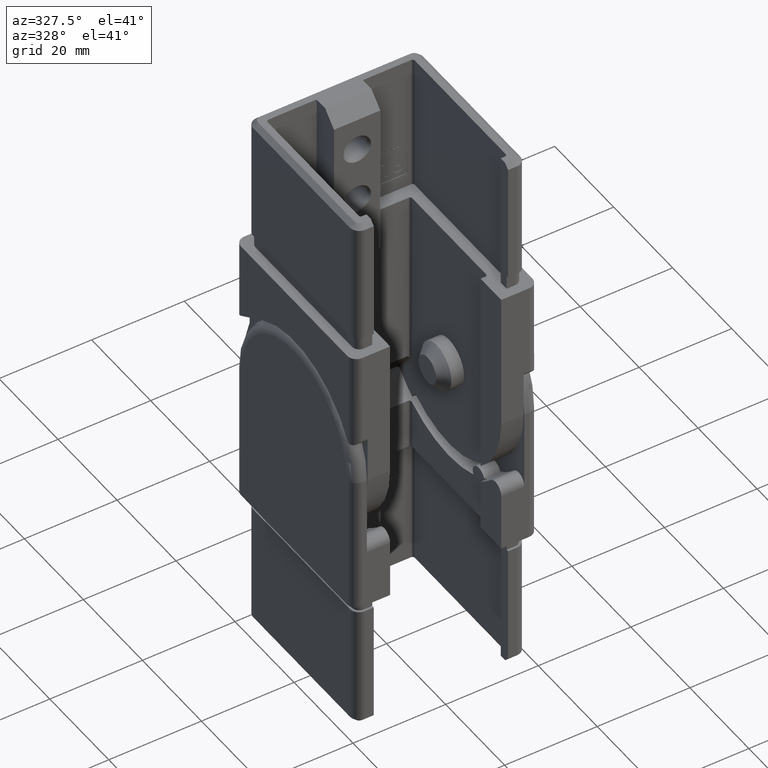
[diagram: clean part render]
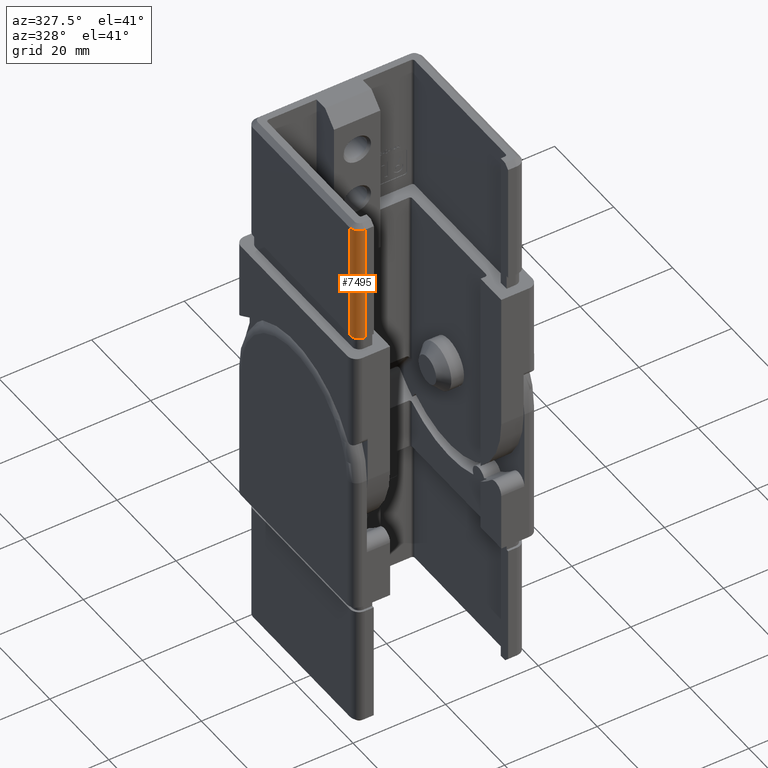
[diagram: same view with one face highlighted and labeled with its STEP entity id]
A machine part, auxiliary view. The second image highlights one B-rep face of the part: STEP entity #7495.
In plain terms, the highlighted cylindrical surface (edge-blend (fillet) strip) has radius 2 mm, axis along (-0, -0, -1).
Its self-contained STEP definition (entity closure, byte-faithful):
#270 = CIRCLE ( 'NONE', #20618, 2.000000000000000000 ) ;
#671 = EDGE_LOOP ( 'NONE', ( #20807, #2320, #18003, #17146 ) ) ;
#700 = DIRECTION ( 'NONE',  ( -0.0000000000000000000, -0.0000000000000000000, -1.000000000000000000 ) ) ;
#1036 = DIRECTION ( 'NONE',  ( -0.0000000000000000000, -0.0000000000000000000, -1.000000000000000000 ) ) ;
#1092 = CYLINDRICAL_SURFACE ( 'NONE', #11072, 2.000000000000001800 ) ;
#1208 = LINE ( 'NONE', #2479, #8276 ) ;
#2028 = DIRECTION ( 'NONE',  ( -1.000000000000000000, 0.0000000000000000000, 0.0000000000000000000 ) ) ;
#2150 = VERTEX_POINT ( 'NONE', #24013 ) ;
#2320 = ORIENTED_EDGE ( 'NONE', *, *, #22960, .F. ) ;
#2479 = CARTESIAN_POINT ( 'NONE',  ( -16.40000000000000600, -18.39999999999999500, 30.00000000000000000 ) ) ;
#3414 = EDGE_CURVE ( 'NONE', #17873, #10560, #16935, .T. ) ;
#4892 = EDGE_CURVE ( 'NONE', #12265, #17873, #270, .T. ) ;
#6769 = CARTESIAN_POINT ( 'NONE',  ( -18.40000000000000600, -16.39999999999999900, 29.00000000000000400 ) ) ;
#7486 = DIRECTION ( 'NONE',  ( -1.000000000000000000, 0.0000000000000000000, 0.0000000000000000000 ) ) ;
#7495 = ADVANCED_FACE ( 'NONE', ( #24517 ), #1092, .T. ) ;
#8276 = VECTOR ( 'NONE', #20573, 1000.000000000000000 ) ;
#9712 = DIRECTION ( 'NONE',  ( -0.0000000000000000000, -0.0000000000000000000, -1.000000000000000000 ) ) ;
#10026 = DIRECTION ( 'NONE',  ( -0.0000000000000000000, -0.0000000000000000000, -1.000000000000000000 ) ) ;
#10560 = VERTEX_POINT ( 'NONE', #23625 ) ;
#11072 = AXIS2_PLACEMENT_3D ( 'NONE', #19510, #9712, #7486 ) ;
#12265 = VERTEX_POINT ( 'NONE', #17920 ) ;
#12707 = AXIS2_PLACEMENT_3D ( 'NONE', #23759, #10026, #2028 ) ;
#12848 = CIRCLE ( 'NONE', #12707, 1.999999999999998200 ) ;
#13729 = EDGE_CURVE ( 'NONE', #12265, #2150, #1208, .T. ) ;
#14856 = DIRECTION ( 'NONE',  ( 1.000000000000000000, 0.0000000000000000000, 0.0000000000000000000 ) ) ;
#14939 = CARTESIAN_POINT ( 'NONE',  ( -16.40000000000000600, -16.39999999999999900, 29.00000000000000400 ) ) ;
#16935 = LINE ( 'NONE', #19266, #20322 ) ;
#17146 = ORIENTED_EDGE ( 'NONE', *, *, #4892, .T. ) ;
#17873 = VERTEX_POINT ( 'NONE', #6769 ) ;
#17920 = CARTESIAN_POINT ( 'NONE',  ( -16.40000000000000600, -18.39999999999999500, 29.00000000000000400 ) ) ;
#18003 = ORIENTED_EDGE ( 'NONE', *, *, #13729, .F. ) ;
#19266 = CARTESIAN_POINT ( 'NONE',  ( -18.40000000000000600, -16.39999999999999900, 30.00000000000000000 ) ) ;
#19510 = CARTESIAN_POINT ( 'NONE',  ( -16.40000000000000600, -16.39999999999999900, 30.00000000000000000 ) ) ;
#20322 = VECTOR ( 'NONE', #700, 1000.000000000000000 ) ;
#20573 = DIRECTION ( 'NONE',  ( -0.0000000000000000000, -0.0000000000000000000, -1.000000000000000000 ) ) ;
#20618 = AXIS2_PLACEMENT_3D ( 'NONE', #14939, #1036, #14856 ) ;
#20807 = ORIENTED_EDGE ( 'NONE', *, *, #3414, .T. ) ;
#22960 = EDGE_CURVE ( 'NONE', #2150, #10560, #12848, .T. ) ;
#23625 = CARTESIAN_POINT ( 'NONE',  ( -18.39999999999999900, -16.39999999999999100, 3.000000000000002700 ) ) ;
#23759 = CARTESIAN_POINT ( 'NONE',  ( -16.40000000000000600, -16.39999999999999900, 3.000000000000002700 ) ) ;
#24013 = CARTESIAN_POINT ( 'NONE',  ( -16.40000000000000600, -18.39999999999999500, 3.000000000000002700 ) ) ;
#24517 = FACE_OUTER_BOUND ( 'NONE', #671, .T. ) ;